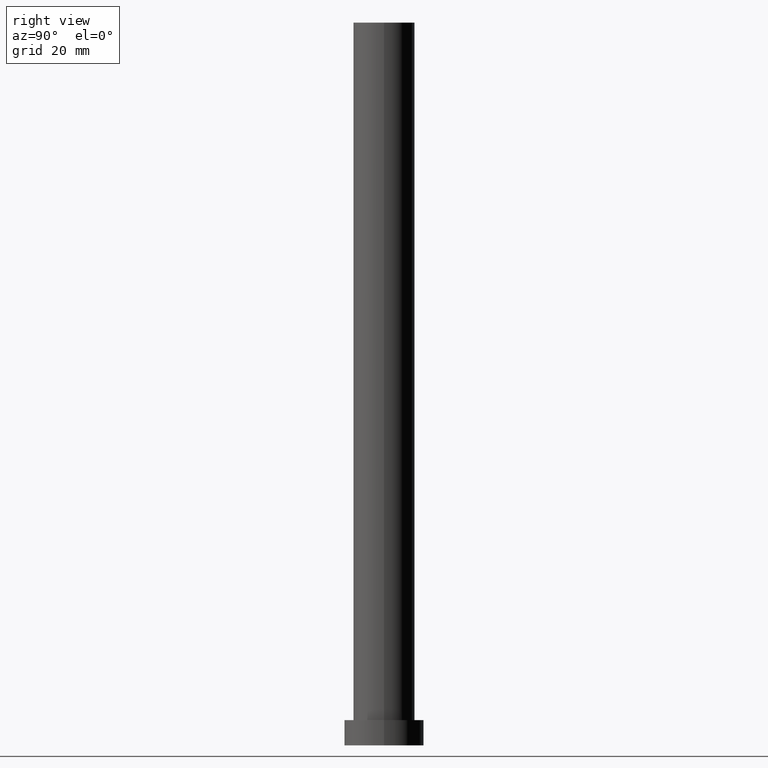
[diagram: clean part render]
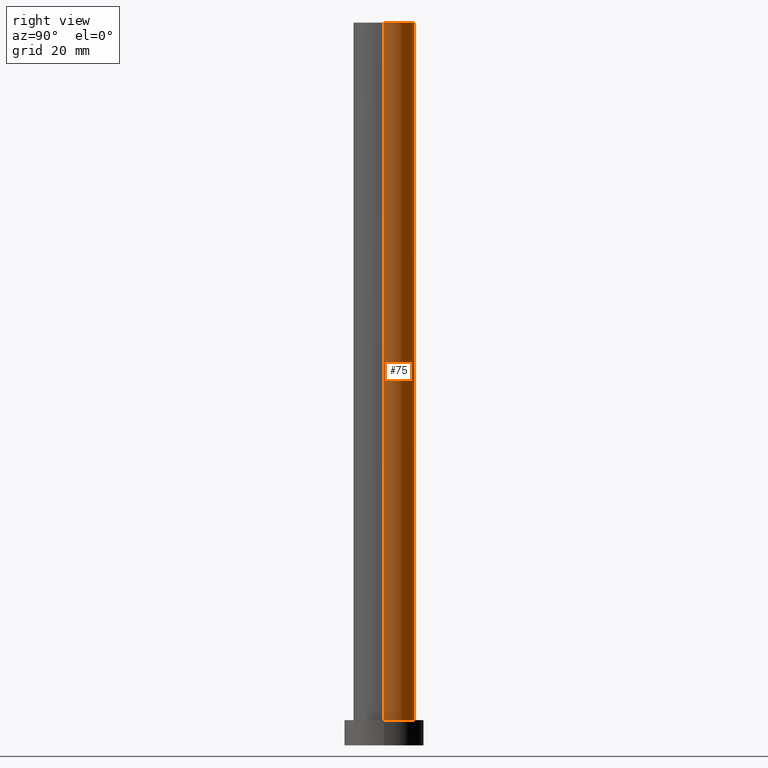
[diagram: same view with one face highlighted and labeled with its STEP entity id]
A machine part, right view. The second image highlights one B-rep face of the part: STEP entity #75.
In plain terms, the highlighted cylindrical surface (edge-blend (fillet) strip) has radius 8.5 mm, axis along (-0, -0, -1).
Its self-contained STEP definition (entity closure, byte-faithful):
#3 = CIRCLE ( 'NONE', #178, 8.500000000000000000 ) ;
#8 = CARTESIAN_POINT ( 'NONE',  ( -8.500000000000000000, 0.000000000000000000, 7.000000000000000000 ) ) ;
#17 = LINE ( 'NONE', #76, #202 ) ;
#20 = EDGE_CURVE ( 'NONE', #144, #82, #83, .T. ) ;
#22 = DIRECTION ( 'NONE',  ( -0.000000000000000000, -0.000000000000000000, -1.000000000000000000 ) ) ;
#36 = VERTEX_POINT ( 'NONE', #92 ) ;
#40 = DIRECTION ( 'NONE',  ( 0.000000000000000000, 0.000000000000000000, 1.000000000000000000 ) ) ;
#48 = ORIENTED_EDGE ( 'NONE', *, *, #165, .F. ) ;
#49 = EDGE_CURVE ( 'NONE', #144, #36, #17, .T. ) ;
#59 = DIRECTION ( 'NONE',  ( -0.000000000000000000, -0.000000000000000000, -1.000000000000000000 ) ) ;
#63 = CARTESIAN_POINT ( 'NONE',  ( 0.000000000000000000, 0.000000000000000000, 200.0000000000000000 ) ) ;
#75 = ADVANCED_FACE ( 'NONE', ( #170 ), #77, .T. ) ;
#76 = CARTESIAN_POINT ( 'NONE',  ( 8.500000000000000000, 1.040949779275250140E-15, 200.0000000000000000 ) ) ;
#77 = CYLINDRICAL_SURFACE ( 'NONE', #190, 8.500000000000000000 ) ;
#82 = VERTEX_POINT ( 'NONE', #219 ) ;
#83 = CIRCLE ( 'NONE', #234, 8.500000000000000000 ) ;
#90 = ORIENTED_EDGE ( 'NONE', *, *, #152, .T. ) ;
#92 = CARTESIAN_POINT ( 'NONE',  ( 8.500000000000000000, 1.040949779275250140E-15, 7.000000000000000000 ) ) ;
#95 = CARTESIAN_POINT ( 'NONE',  ( -8.500000000000000000, 0.000000000000000000, 200.0000000000000000 ) ) ;
#102 = ORIENTED_EDGE ( 'NONE', *, *, #20, .F. ) ;
#108 = LINE ( 'NONE', #95, #168 ) ;
#116 = EDGE_LOOP ( 'NONE', ( #102, #230, #90, #48 ) ) ;
#130 = DIRECTION ( 'NONE',  ( -0.000000000000000000, -0.000000000000000000, -1.000000000000000000 ) ) ;
#132 = CARTESIAN_POINT ( 'NONE',  ( 0.000000000000000000, 0.000000000000000000, 7.000000000000000000 ) ) ;
#144 = VERTEX_POINT ( 'NONE', #193 ) ;
#151 = DIRECTION ( 'NONE',  ( 1.000000000000000000, 0.000000000000000000, 0.000000000000000000 ) ) ;
#152 = EDGE_CURVE ( 'NONE', #36, #198, #3, .T. ) ;
#153 = DIRECTION ( 'NONE',  ( -1.000000000000000000, 0.000000000000000000, 0.000000000000000000 ) ) ;
#154 = DIRECTION ( 'NONE',  ( 1.000000000000000000, 0.000000000000000000, 0.000000000000000000 ) ) ;
#165 = EDGE_CURVE ( 'NONE', #82, #198, #108, .T. ) ;
#168 = VECTOR ( 'NONE', #22, 1000.000000000000000 ) ;
#170 = FACE_OUTER_BOUND ( 'NONE', #116, .T. ) ;
#171 = DIRECTION ( 'NONE',  ( 0.000000000000000000, 0.000000000000000000, 1.000000000000000000 ) ) ;
#178 = AXIS2_PLACEMENT_3D ( 'NONE', #132, #171, #154 ) ;
#186 = CARTESIAN_POINT ( 'NONE',  ( 0.000000000000000000, 0.000000000000000000, 200.0000000000000000 ) ) ;
#190 = AXIS2_PLACEMENT_3D ( 'NONE', #63, #130, #153 ) ;
#193 = CARTESIAN_POINT ( 'NONE',  ( 8.500000000000000000, 1.040949779275250140E-15, 200.0000000000000000 ) ) ;
#198 = VERTEX_POINT ( 'NONE', #8 ) ;
#202 = VECTOR ( 'NONE', #59, 1000.000000000000000 ) ;
#219 = CARTESIAN_POINT ( 'NONE',  ( -8.500000000000000000, 0.000000000000000000, 200.0000000000000000 ) ) ;
#230 = ORIENTED_EDGE ( 'NONE', *, *, #49, .T. ) ;
#234 = AXIS2_PLACEMENT_3D ( 'NONE', #186, #40, #151 ) ;